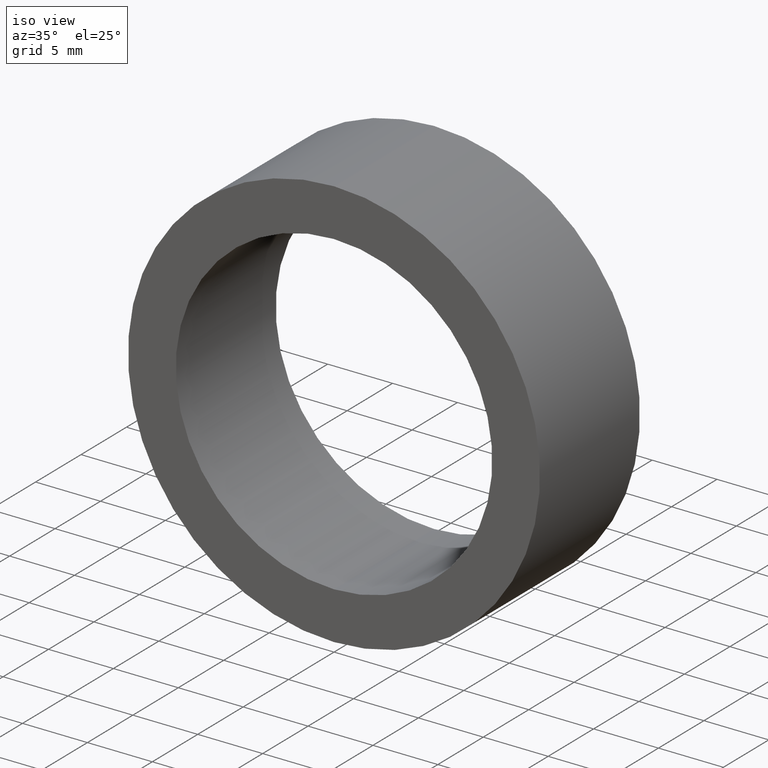
[diagram: clean part render]
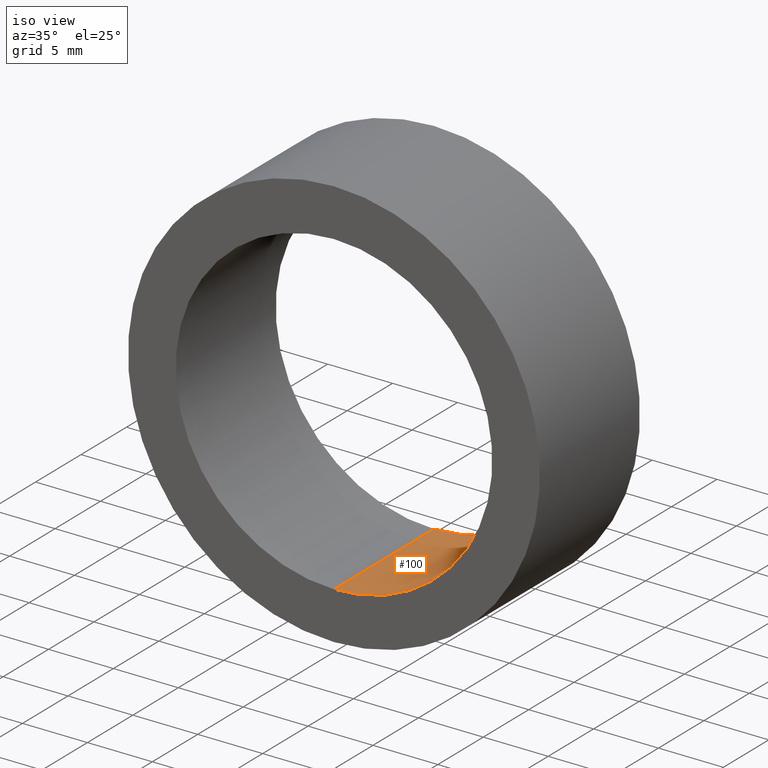
[diagram: same view with one face highlighted and labeled with its STEP entity id]
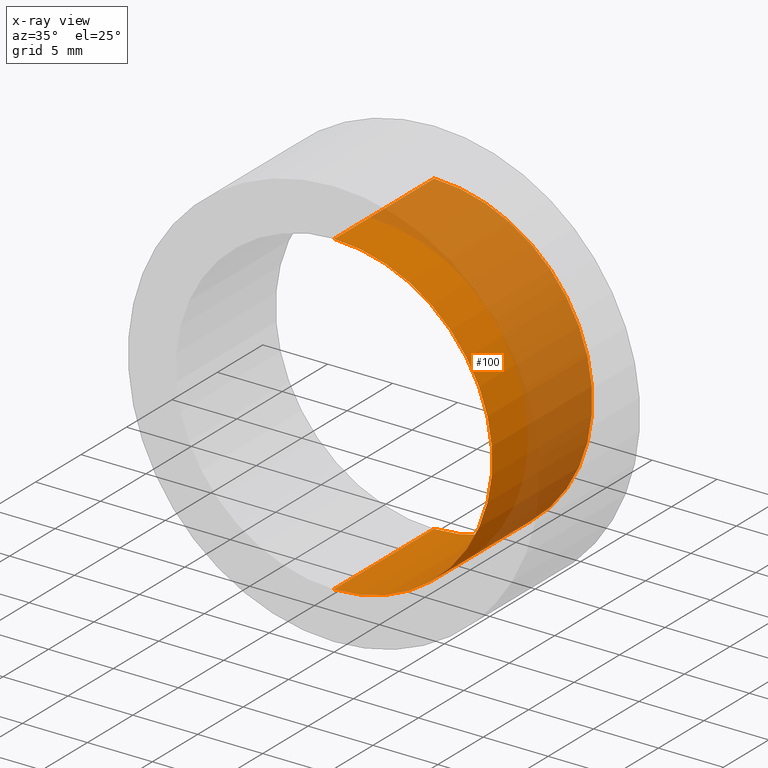
[diagram: x-ray of the same camera — body ghosted, the highlighted face saturated]
A machine part, iso view. The second image highlights one B-rep face of the part: STEP entity #100.
The next image is the same camera in x-ray: the body ghosted, the highlighted face saturated — about 58% of this face is hidden behind the body in this view.
In plain terms, the highlighted cylindrical surface (partial cylindrical patch) has radius 12.2 mm, axis along (-0, -1, -0).
Its self-contained STEP definition (entity closure, byte-faithful):
#3 = DIRECTION ( 'NONE',  ( 0.0000000000000000000, 1.000000000000000000, 0.0000000000000000000 ) ) ;
#24 = LINE ( 'NONE', #86, #128 ) ;
#32 = CARTESIAN_POINT ( 'NONE',  ( 0.0000000000000000000, 11.00000000000000000, 0.0000000000000000000 ) ) ;
#36 = CIRCLE ( 'NONE', #219, 12.19999999999999900 ) ;
#40 = CARTESIAN_POINT ( 'NONE',  ( 1.494069094959770900E-015, 11.00000000000000000, 12.19999999999999900 ) ) ;
#45 = LINE ( 'NONE', #98, #140 ) ;
#47 = CIRCLE ( 'NONE', #147, 12.19999999999999900 ) ;
#51 = DIRECTION ( 'NONE',  ( 0.0000000000000000000, 0.0000000000000000000, 1.000000000000000000 ) ) ;
#71 = EDGE_CURVE ( 'NONE', #160, #73, #36, .T. ) ;
#73 = VERTEX_POINT ( 'NONE', #164 ) ;
#74 = VERTEX_POINT ( 'NONE', #117 ) ;
#80 = DIRECTION ( 'NONE',  ( -0.0000000000000000000, -1.000000000000000000, -0.0000000000000000000 ) ) ;
#83 = EDGE_CURVE ( 'NONE', #90, #160, #45, .T. ) ;
#86 = CARTESIAN_POINT ( 'NONE',  ( 0.0000000000000000000, 11.00000000000000000, -12.19999999999999900 ) ) ;
#90 = VERTEX_POINT ( 'NONE', #40 ) ;
#98 = CARTESIAN_POINT ( 'NONE',  ( 1.494069094959770900E-015, 11.00000000000000000, 12.19999999999999900 ) ) ;
#100 = ADVANCED_FACE ( 'NONE', ( #118 ), #161, .F. ) ;
#104 = CARTESIAN_POINT ( 'NONE',  ( 1.494069094959770900E-015, 0.0000000000000000000, 12.19999999999999900 ) ) ;
#108 = CARTESIAN_POINT ( 'NONE',  ( 0.0000000000000000000, 0.0000000000000000000, 0.0000000000000000000 ) ) ;
#110 = ORIENTED_EDGE ( 'NONE', *, *, #131, .T. ) ;
#117 = CARTESIAN_POINT ( 'NONE',  ( 0.0000000000000000000, 11.00000000000000000, -12.19999999999999900 ) ) ;
#118 = FACE_OUTER_BOUND ( 'NONE', #150, .T. ) ;
#126 = DIRECTION ( 'NONE',  ( 0.0000000000000000000, 1.000000000000000000, 0.0000000000000000000 ) ) ;
#128 = VECTOR ( 'NONE', #80, 1000.000000000000000 ) ;
#131 = EDGE_CURVE ( 'NONE', #74, #73, #24, .T. ) ;
#140 = VECTOR ( 'NONE', #146, 1000.000000000000000 ) ;
#146 = DIRECTION ( 'NONE',  ( -0.0000000000000000000, -1.000000000000000000, -0.0000000000000000000 ) ) ;
#147 = AXIS2_PLACEMENT_3D ( 'NONE', #197, #126, #233 ) ;
#150 = EDGE_LOOP ( 'NONE', ( #195, #172, #110, #188 ) ) ;
#152 = DIRECTION ( 'NONE',  ( -0.0000000000000000000, -1.000000000000000000, -0.0000000000000000000 ) ) ;
#154 = EDGE_CURVE ( 'NONE', #90, #74, #47, .T. ) ;
#160 = VERTEX_POINT ( 'NONE', #104 ) ;
#161 = CYLINDRICAL_SURFACE ( 'NONE', #211, 12.19999999999999900 ) ;
#164 = CARTESIAN_POINT ( 'NONE',  ( 0.0000000000000000000, 0.0000000000000000000, -12.19999999999999900 ) ) ;
#172 = ORIENTED_EDGE ( 'NONE', *, *, #154, .T. ) ;
#188 = ORIENTED_EDGE ( 'NONE', *, *, #71, .F. ) ;
#189 = DIRECTION ( 'NONE',  ( 0.0000000000000000000, 0.0000000000000000000, -1.000000000000000000 ) ) ;
#195 = ORIENTED_EDGE ( 'NONE', *, *, #83, .F. ) ;
#197 = CARTESIAN_POINT ( 'NONE',  ( 0.0000000000000000000, 11.00000000000000000, 0.0000000000000000000 ) ) ;
#211 = AXIS2_PLACEMENT_3D ( 'NONE', #32, #152, #189 ) ;
#219 = AXIS2_PLACEMENT_3D ( 'NONE', #108, #3, #51 ) ;
#233 = DIRECTION ( 'NONE',  ( 0.0000000000000000000, 0.0000000000000000000, 1.000000000000000000 ) ) ;